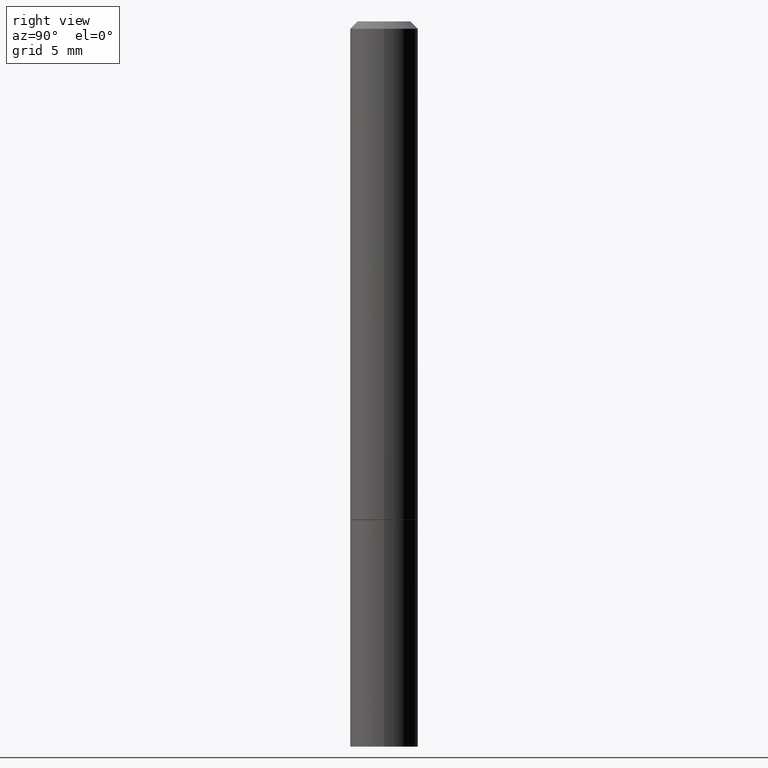
[diagram: clean part render]
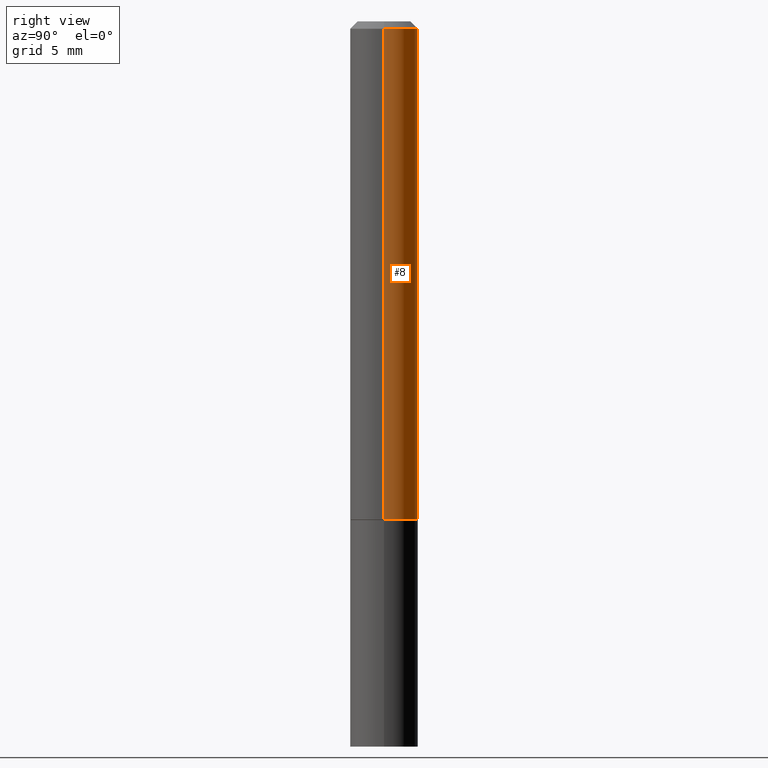
[diagram: same view with one face highlighted and labeled with its STEP entity id]
A machine part, right view. The second image highlights one B-rep face of the part: STEP entity #8.
In plain terms, the highlighted cylindrical surface (edge-blend (fillet) strip) has radius 2.3812 mm, axis along (-0, 0, 1).
Its self-contained STEP definition (entity closure, byte-faithful):
#8 = ADVANCED_FACE ( 'NONE', ( #239 ), #84, .T. ) ;
#30 = ORIENTED_EDGE ( 'NONE', *, *, #363, .T. ) ;
#37 = DIRECTION ( 'NONE',  ( 1.000000000000000000, -6.982962677686266711E-15, 4.876176775795935793E-29 ) ) ;
#39 = CARTESIAN_POINT ( 'NONE',  ( 0.000000000000000000, 0.000000000000000000, 0.000000000000000000 ) ) ;
#42 = AXIS2_PLACEMENT_3D ( 'NONE', #217, #304, #211 ) ;
#48 = ORIENTED_EDGE ( 'NONE', *, *, #249, .F. ) ;
#70 = VERTEX_POINT ( 'NONE', #258 ) ;
#84 = CYLINDRICAL_SURFACE ( 'NONE', #259, 0.09374999999999991673 ) ;
#86 = VECTOR ( 'NONE', #118, 39.37007874015748143 ) ;
#111 = VERTEX_POINT ( 'NONE', #375 ) ;
#117 = ORIENTED_EDGE ( 'NONE', *, *, #323, .T. ) ;
#118 = DIRECTION ( 'NONE',  ( -2.445468806185136877E-29, 3.491481338843145188E-15, 1.000000000000000000 ) ) ;
#122 = LINE ( 'NONE', #240, #162 ) ;
#131 = ORIENTED_EDGE ( 'NONE', *, *, #390, .F. ) ;
#133 = CIRCLE ( 'NONE', #42, 0.09375000000000001388 ) ;
#148 = DIRECTION ( 'NONE',  ( -2.445468806185136597E-29, 3.491481338843145583E-15, 1.000000000000000000 ) ) ;
#162 = VECTOR ( 'NONE', #270, 39.37007874015748143 ) ;
#188 = DIRECTION ( 'NONE',  ( 1.000000000000000000, -6.982962677686266711E-15, 0.000000000000000000 ) ) ;
#211 = DIRECTION ( 'NONE',  ( 1.000000000000000000, -6.982962677686261189E-15, 0.000000000000000000 ) ) ;
#213 = CARTESIAN_POINT ( 'NONE',  ( 4.890937612370278413E-31, -6.982962677686297772E-17, -0.02000000000000002123 ) ) ;
#217 = CARTESIAN_POINT ( 'NONE',  ( 3.360074139698377778E-29, -4.797295359570481134E-15, -1.373999999999999888 ) ) ;
#239 = FACE_OUTER_BOUND ( 'NONE', #316, .T. ) ;
#240 = CARTESIAN_POINT ( 'NONE',  ( 0.09374999999999991673, -6.546527510330869125E-16, 4.571415727308685602E-30 ) ) ;
#249 = EDGE_CURVE ( 'NONE', #70, #320, #268, .T. ) ;
#258 = CARTESIAN_POINT ( 'NONE',  ( 0.09374999999999984734, -7.130013140679430017E-16, -0.02000000000000002123 ) ) ;
#259 = AXIS2_PLACEMENT_3D ( 'NONE', #39, #148, #37 ) ;
#264 = LINE ( 'NONE', #300, #86 ) ;
#266 = AXIS2_PLACEMENT_3D ( 'NONE', #213, #336, #188 ) ;
#268 = CIRCLE ( 'NONE', #266, 0.09374999999999984734 ) ;
#270 = DIRECTION ( 'NONE',  ( -2.445468806185136877E-29, 3.491481338843145188E-15, 1.000000000000000000 ) ) ;
#279 = VERTEX_POINT ( 'NONE', #282 ) ;
#282 = CARTESIAN_POINT ( 'NONE',  ( -0.09375000000000001388, -1.767428678398575728E-15, -1.373999999999999888 ) ) ;
#298 = CARTESIAN_POINT ( 'NONE',  ( -0.09374999999999984734, 5.848231242562234171E-16, -0.02000000000000002123 ) ) ;
#300 = CARTESIAN_POINT ( 'NONE',  ( -0.09374999999999991673, 6.661338147750933326E-16, -4.611501647113969791E-30 ) ) ;
#304 = DIRECTION ( 'NONE',  ( -2.445468806185136597E-29, 3.491481338843145583E-15, 1.000000000000000000 ) ) ;
#316 = EDGE_LOOP ( 'NONE', ( #30, #117, #48, #131 ) ) ;
#320 = VERTEX_POINT ( 'NONE', #298 ) ;
#323 = EDGE_CURVE ( 'NONE', #279, #320, #264, .T. ) ;
#336 = DIRECTION ( 'NONE',  ( -2.445468806185136597E-29, 3.491481338843145583E-15, 1.000000000000000000 ) ) ;
#363 = EDGE_CURVE ( 'NONE', #111, #279, #133, .T. ) ;
#375 = CARTESIAN_POINT ( 'NONE',  ( 0.09375000000000001388, -5.451948110603568638E-15, -1.373999999999999888 ) ) ;
#390 = EDGE_CURVE ( 'NONE', #111, #70, #122, .T. ) ;